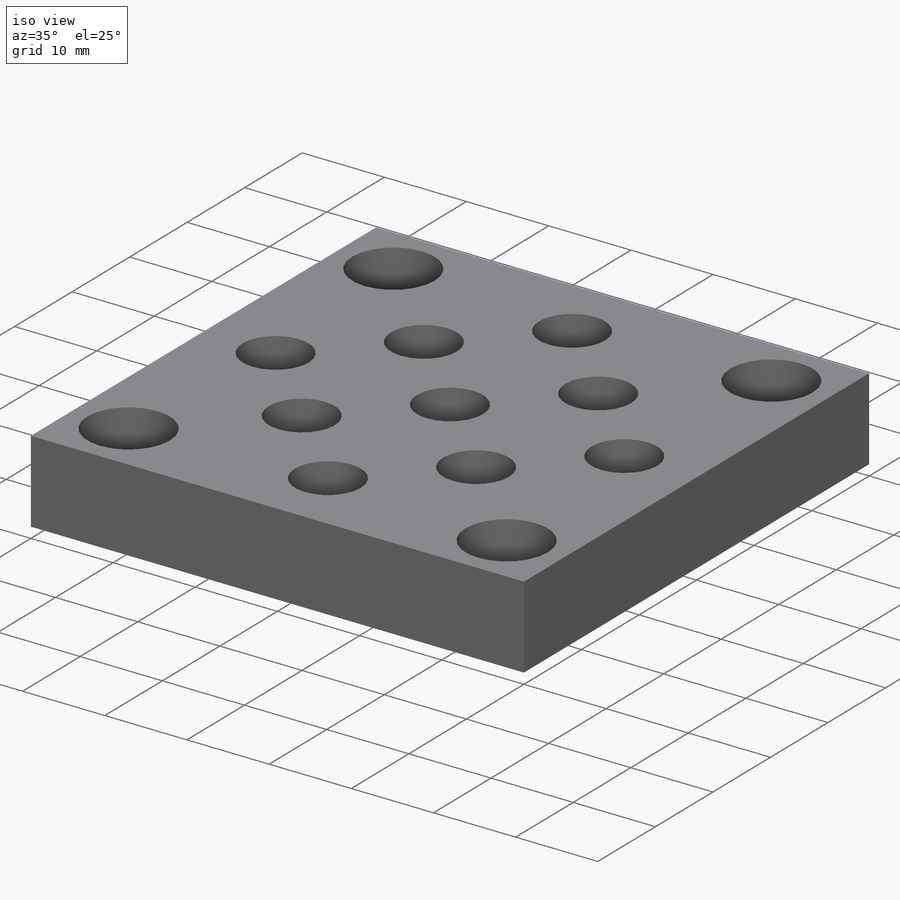
[diagram: iso view]
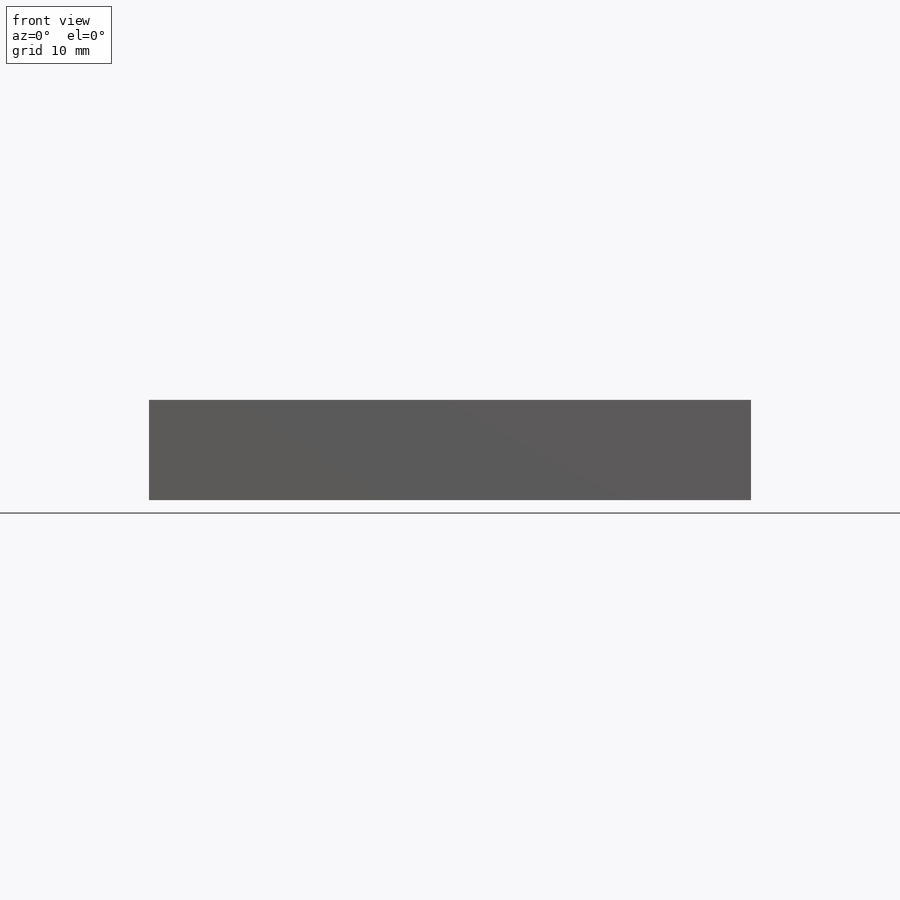
[diagram: front view]
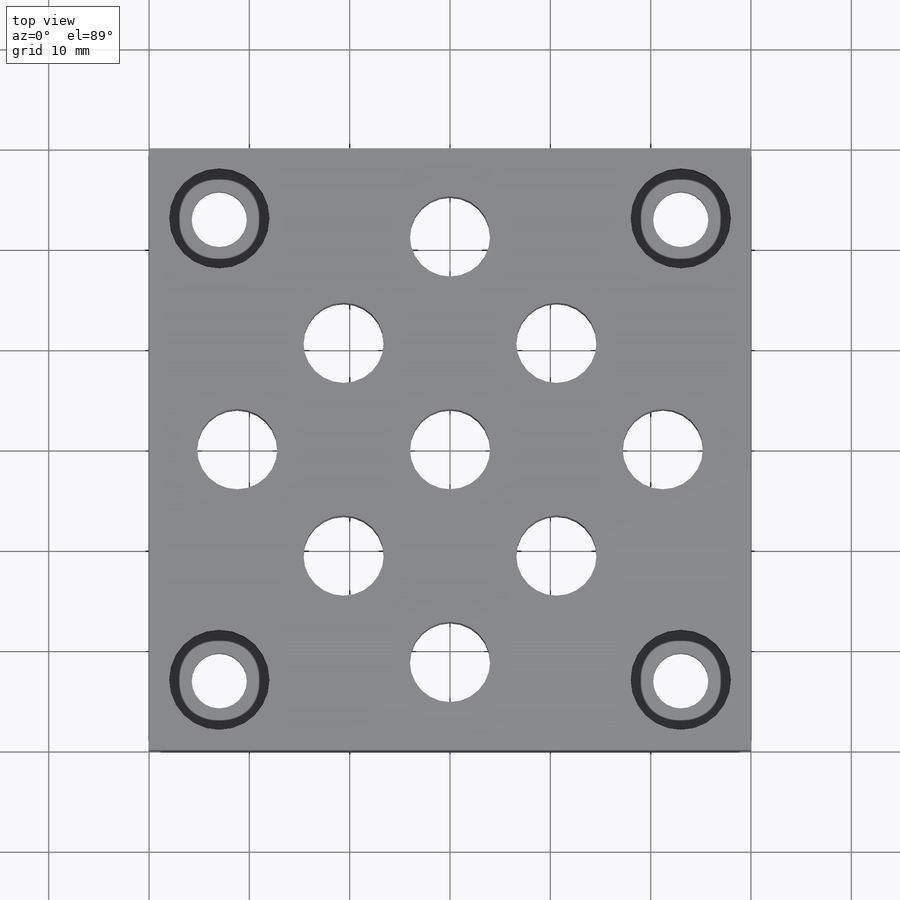
[diagram: top view]
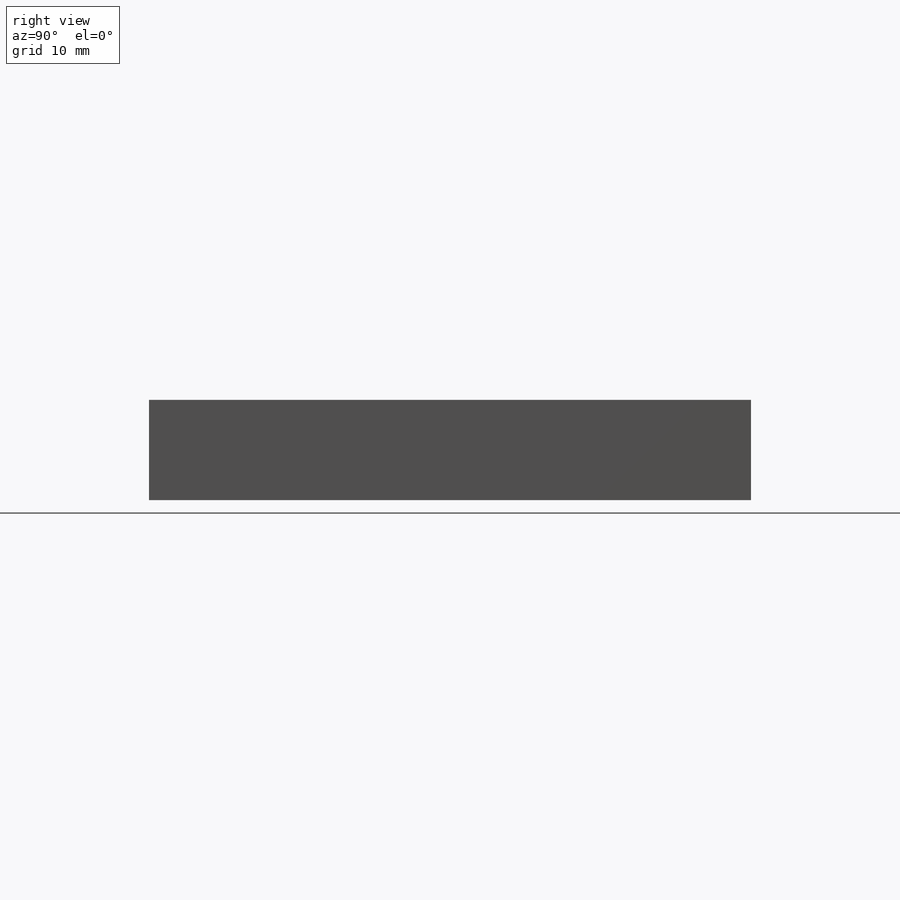
[diagram: right view]
SOLIDWORKS PART (.sldprt)
format: sldprt  version: not decoded by parser v0  size: 425,984 bytes
history: native  units: mm
features: sketch x7, thread x4, plane x3, hole x2, material x1, extrude x1, cut_extrude x1, pattern_linear x1 (+10 scaffold rows collapsed)
feature tree (30):
  scaffold x10  (default folders/planes/origin — collapsed)
  material  "Material <sin especificar>"
  plane  "Alzado"
  plane  "Planta"
  plane  "Vista lateral"
  sketch  "Croquis1"  dims[D1=60.0mm]
  extrude  "Saliente-Extruir1"  Depth=10mm
  sketch  "Croquis2"  dims[D3=8.0mm D1=46.0mm D2=15.0mm D4=15.0mm]
  sketch  "Croquis3"  dims[D1=8.0mm D2=15.0mm D3=15.0mm]
  cut_extrude  "Cortar-Extruir2"  [1 undecoded]
  pattern_linear  "MatrizL1"  Count1=3 Count2=3 Spacing1=15mm Spacing2=15mm
  hole  "Refrentado para tornillo con cabeza hueca de M51"  Depth=10mm  [1 undecoded]
  sketch  "Croquis3D1"
  sketch  "Croquis4"  dims[hole-wizard template sketch: 41 standard entries collapsed; hole parameters kept: c12.Diámetro de taladro hasta el siguiente=5.5mm c12.Profundidad de taladro hasta el siguiente=10.0mm c12.Diámetro de refrentado=10.0mm c12.Profundidad de refrentado=5.4mm]
  hole  "Taladro roscado M51"  Depth=10mm  [1 undecoded]
  sketch  "Croquis3D2"
  sketch  "Croquis5"  dims[hole-wizard template sketch: 59 standard entries collapsed; hole parameters kept: c18.Diámetro de perforador para roscar hasta el siguiente=4.2mm c18.Profundidad de perforador para roscar hasta el siguiente=10.0mm]
  thread  "Rosca de taladro1"  Diameter=5mm  [1 undecoded]
  thread  "Rosca de taladro2"  Diameter=5mm  [1 undecoded]
  thread  "Rosca de taladro3"  Diameter=5mm  [1 undecoded]
  thread  "Rosca de taladro4"  Diameter=5mm  [1 undecoded]
decode coverage: 13 of 16 modeling features carry decoded parameters
note: ~ marks probable driven/reference dimensions
note: 7 parameter values undecoded
summary: no parameter record found for 3 features
note: suppression state not decoded; provenance and decode notes live in map.json
